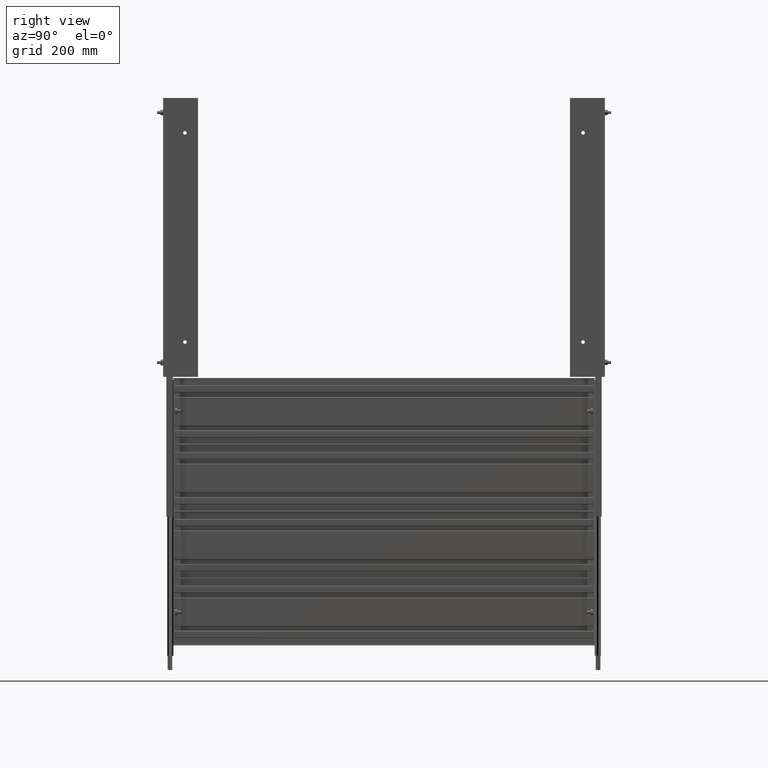
[diagram: clean part render]
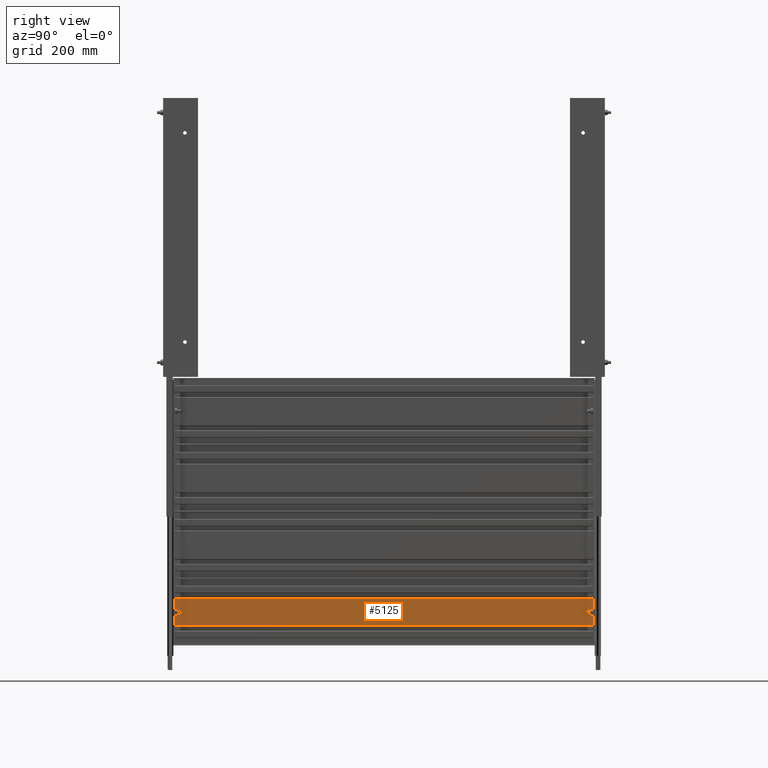
[diagram: same view with one face highlighted and labeled with its STEP entity id]
A machine part, right view. The second image highlights one B-rep face of the part: STEP entity #5125.
In plain terms, the highlighted planar face has unit normal (1, -0, 0).
Its self-contained STEP definition (entity closure, byte-faithful):
#2207 = DIRECTION ( 'NONE',  ( 1.000000000000000000, 0.0000000000000000000, 0.0000000000000000000 ) ) ;
#2245 = LINE ( 'NONE', #16680, #19415 ) ;
#3891 = VERTEX_POINT ( 'NONE', #9363 ) ;
#3923 = LINE ( 'NONE', #10914, #7433 ) ;
#4476 = LINE ( 'NONE', #16988, #12526 ) ;
#4660 = ORIENTED_EDGE ( 'NONE', *, *, #10199, .T. ) ;
#5125 = ADVANCED_FACE ( 'NONE', ( #14941 ), #20150, .T. ) ;
#5598 = CARTESIAN_POINT ( 'NONE',  ( -1.181095032129951600, 1.707404996040164500E-016, -36.00000000000000000 ) ) ;
#7250 = VERTEX_POINT ( 'NONE', #5598 ) ;
#7433 = VECTOR ( 'NONE', #16036, 39.37007874015748100 ) ;
#8156 = VECTOR ( 'NONE', #9404, 39.37007874015748100 ) ;
#8454 = DIRECTION ( 'NONE',  ( 0.0000000000000000000, 0.0000000000000000000, 1.000000000000000000 ) ) ;
#8685 = LINE ( 'NONE', #21418, #8156 ) ;
#9363 = CARTESIAN_POINT ( 'NONE',  ( 1.181095032129949200, 0.0000000000000000000, 0.0000000000000000000 ) ) ;
#9404 = DIRECTION ( 'NONE',  ( 0.0000000000000000000, 0.0000000000000000000, 1.000000000000000000 ) ) ;
#9876 = CARTESIAN_POINT ( 'NONE',  ( -1.181095032129951600, 0.0000000000000000000, -36.00000000000000000 ) ) ;
#10030 = EDGE_CURVE ( 'NONE', #13117, #3891, #2245, .T. ) ;
#10199 = EDGE_CURVE ( 'NONE', #14154, #3891, #8685, .T. ) ;
#10639 = CARTESIAN_POINT ( 'NONE',  ( -1.181095032129951600, 1.707404996040164500E-016, 0.0000000000000000000 ) ) ;
#10643 = EDGE_LOOP ( 'NONE', ( #11332, #20802, #11837, #4660 ) ) ;
#10914 = CARTESIAN_POINT ( 'NONE',  ( -1.181095032129951600, 0.0000000000000000000, -36.00000000000000000 ) ) ;
#11332 = ORIENTED_EDGE ( 'NONE', *, *, #10030, .F. ) ;
#11596 = DIRECTION ( 'NONE',  ( 0.0000000000000000000, -0.0000000000000000000, -1.000000000000000000 ) ) ;
#11837 = ORIENTED_EDGE ( 'NONE', *, *, #17237, .T. ) ;
#12526 = VECTOR ( 'NONE', #8454, 39.37007874015748100 ) ;
#13117 = VERTEX_POINT ( 'NONE', #10639 ) ;
#13530 = CARTESIAN_POINT ( 'NONE',  ( 1.181095032129949200, 0.0000000000000000000, -36.00000000000000000 ) ) ;
#14154 = VERTEX_POINT ( 'NONE', #13530 ) ;
#14941 = FACE_OUTER_BOUND ( 'NONE', #10643, .T. ) ;
#15189 = EDGE_CURVE ( 'NONE', #7250, #13117, #4476, .T. ) ;
#16036 = DIRECTION ( 'NONE',  ( 1.000000000000000000, 0.0000000000000000000, 0.0000000000000000000 ) ) ;
#16680 = CARTESIAN_POINT ( 'NONE',  ( -1.181095032129951600, 0.0000000000000000000, 0.0000000000000000000 ) ) ;
#16988 = CARTESIAN_POINT ( 'NONE',  ( -1.181095032129951600, 1.707404996040164500E-016, -36.00000000000000000 ) ) ;
#17237 = EDGE_CURVE ( 'NONE', #7250, #14154, #3923, .T. ) ;
#18884 = AXIS2_PLACEMENT_3D ( 'NONE', #9876, #21863, #11596 ) ;
#19415 = VECTOR ( 'NONE', #2207, 39.37007874015748100 ) ;
#20150 = PLANE ( 'NONE',  #18884 ) ;
#20802 = ORIENTED_EDGE ( 'NONE', *, *, #15189, .F. ) ;
#21418 = CARTESIAN_POINT ( 'NONE',  ( 1.181095032129949200, 0.0000000000000000000, -36.00000000000000000 ) ) ;
#21863 = DIRECTION ( 'NONE',  ( 0.0000000000000000000, -1.000000000000000000, 0.0000000000000000000 ) ) ;